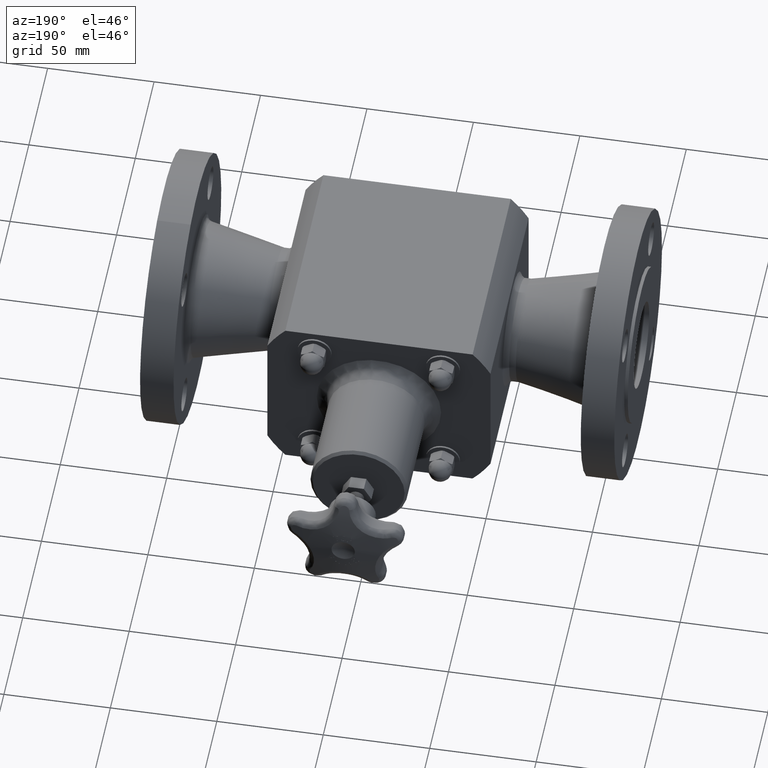
[diagram: clean part render]
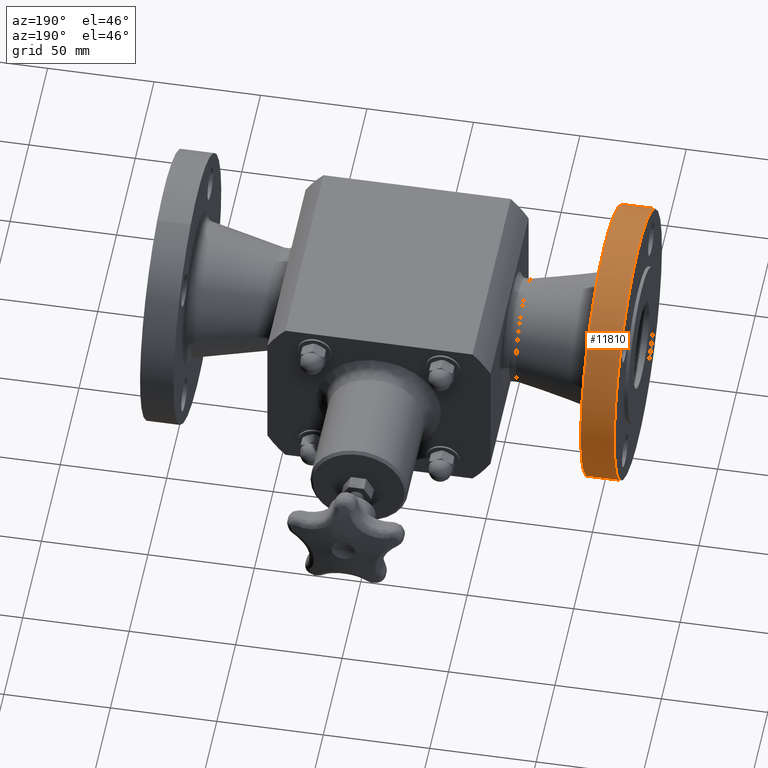
[diagram: same view with one face highlighted and labeled with its STEP entity id]
A machine part, auxiliary view. The second image highlights one B-rep face of the part: STEP entity #11810.
In plain terms, the highlighted cylindrical surface (bore or boss wall) has radius 63.5 mm, axis along (-1, 0, 0).
Its self-contained STEP definition (entity closure, byte-faithful):
#11783=CARTESIAN_POINT('',(-3.226250000009999,1.687000000000027,-5.249381E-016));
#11784=DIRECTION('',(-1.0,6.245005E-016,0.0));
#11785=DIRECTION('',(1.758216E-016,0.281539531142323,-0.959549629984901));
#11786=AXIS2_PLACEMENT_3D('',#11783,#11784,#11785);
#11787=CYLINDRICAL_SURFACE('',#11786,2.500000000010000);
#11788=CARTESIAN_POINT('',(-4.385000000009998,2.390848827852924,-2.398874074971571));
#11789=VERTEX_POINT('',#11788);
#11790=CARTESIAN_POINT('',(-4.385000000009999,1.687000000000027,-5.249381E-016));
#11791=DIRECTION('',(-1.0,3.122502E-016,3.122502E-016));
#11792=DIRECTION('',(-4.415885E-016,-0.707106781186553,-0.707106781186542));
#11793=AXIS2_PLACEMENT_3D('',#11790,#11791,#11792);
#11794=CIRCLE('',#11793,2.500000000010000);
#11795=EDGE_CURVE('',#11789,#11789,#11794,.T.);
#11796=ORIENTED_EDGE('',*,*,#11795,.F.);
#11797=EDGE_LOOP('',(#11796));
#11798=FACE_OUTER_BOUND('',#11797,.T.);
#11799=CARTESIAN_POINT('',(-3.765000000007998,2.390848827852924,-2.398874074971571));
#11800=VERTEX_POINT('',#11799);
#11801=CARTESIAN_POINT('',(-3.765000000007999,1.687000000000027,-5.249381E-016));
#11802=DIRECTION('',(-1.0,3.122502E-016,3.122502E-016));
#11803=DIRECTION('',(-4.415885E-016,-0.707106781186553,-0.707106781186542));
#11804=AXIS2_PLACEMENT_3D('',#11801,#11802,#11803);
#11805=CIRCLE('',#11804,2.500000000010000);
#11806=EDGE_CURVE('',#11800,#11800,#11805,.T.);
#11807=ORIENTED_EDGE('',*,*,#11806,.T.);
#11808=EDGE_LOOP('',(#11807));
#11809=FACE_BOUND('',#11808,.T.);
#11810=ADVANCED_FACE('',(#11798,#11809),#11787,.T.);